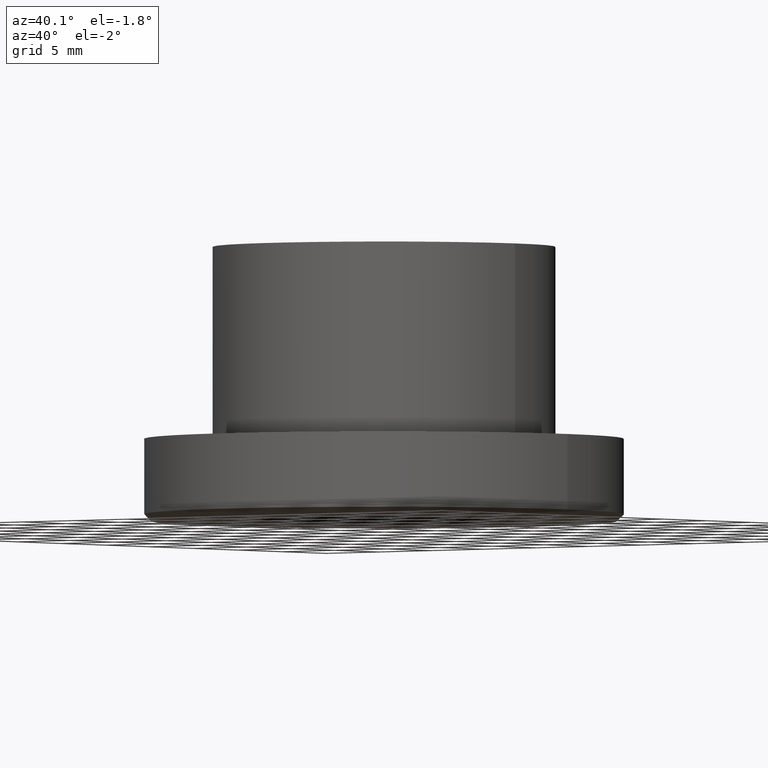
[diagram: clean part render]
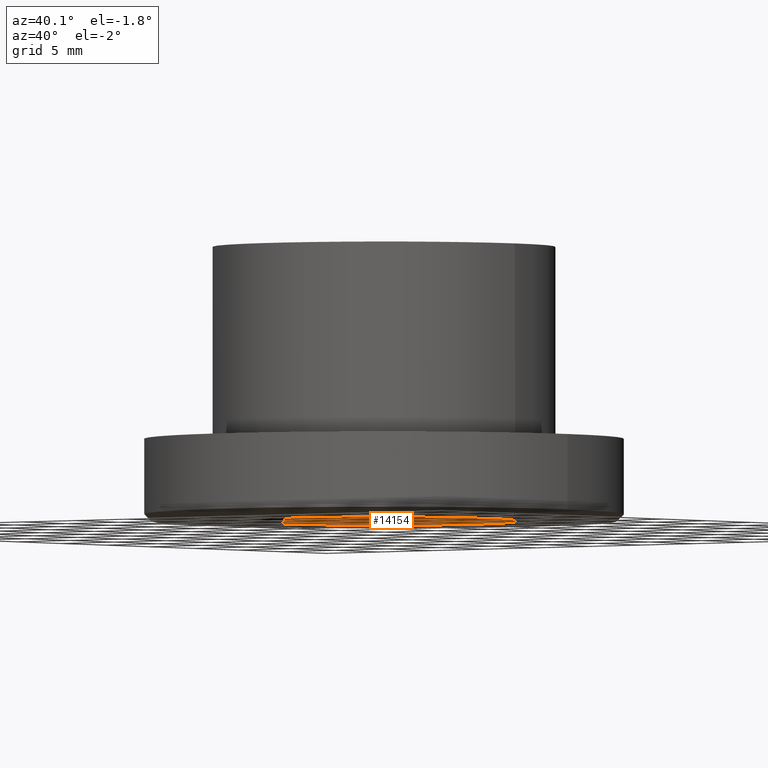
[diagram: same view with one face highlighted and labeled with its STEP entity id]
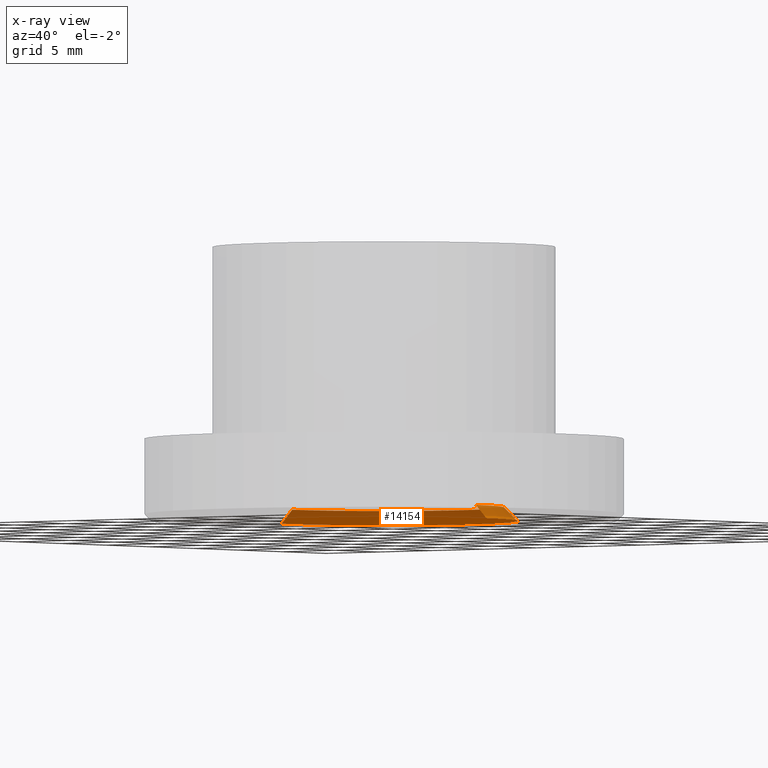
[diagram: x-ray of the same camera — body ghosted, the highlighted face saturated]
A machine part, auxiliary view. The second image highlights one B-rep face of the part: STEP entity #14154.
The next image is the same camera in x-ray: the body ghosted, the highlighted face saturated — about 48% of this face is hidden behind the body in this view.
In plain terms, the highlighted conical surface has half-angle 45 deg.
Its self-contained STEP definition (entity closure, byte-faithful):
#107 = CARTESIAN_POINT ( 'NONE',  ( 9.750000000000001776, 1.194030629168669667E-15, -10.00000000000000000 ) ) ;
#217 = VERTEX_POINT ( 'NONE', #8778 ) ;
#221 = VERTEX_POINT ( 'NONE', #2245 ) ;
#246 = EDGE_LOOP ( 'NONE', ( #1671, #4175, #12935, #3778 ) ) ;
#330 = FACE_OUTER_BOUND ( 'NONE', #246, .T. ) ;
#689 = EDGE_CURVE ( 'NONE', #217, #2035, #8036, .T. ) ;
#1183 = DIRECTION ( 'NONE',  ( -0.7071067811865463515, 0.000000000000000000, -0.7071067811865487940 ) ) ;
#1380 = VECTOR ( 'NONE', #1183, 1000.000000000000000 ) ;
#1421 = EDGE_CURVE ( 'NONE', #8099, #221, #10090, .T. ) ;
#1671 = ORIENTED_EDGE ( 'NONE', *, *, #689, .F. ) ;
#2035 = VERTEX_POINT ( 'NONE', #12724 ) ;
#2245 = CARTESIAN_POINT ( 'NONE',  ( -9.750000000000001776, 0.000000000000000000, -10.00000000000000000 ) ) ;
#2604 = AXIS2_PLACEMENT_3D ( 'NONE', #6101, #13554, #3773 ) ;
#2794 = DIRECTION ( 'NONE',  ( 1.000000000000000000, 0.000000000000000000, 0.000000000000000000 ) ) ;
#3773 = DIRECTION ( 'NONE',  ( 1.000000000000000000, 0.000000000000000000, 0.000000000000000000 ) ) ;
#3778 = ORIENTED_EDGE ( 'NONE', *, *, #13207, .F. ) ;
#4175 = ORIENTED_EDGE ( 'NONE', *, *, #9150, .F. ) ;
#4568 = DIRECTION ( 'NONE',  ( 0.7071067811865463515, 8.659560562354919300E-17, -0.7071067811865487940 ) ) ;
#5011 = CARTESIAN_POINT ( 'NONE',  ( 0.000000000000000000, 0.000000000000000000, -10.00000000000000000 ) ) ;
#5153 = VECTOR ( 'NONE', #4568, 1000.000000000000000 ) ;
#6101 = CARTESIAN_POINT ( 'NONE',  ( 0.000000000000000000, 0.000000000000000000, -8.999999999999989342 ) ) ;
#6256 = CARTESIAN_POINT ( 'NONE',  ( -8.749999999999994671, 1.071565949253933138E-15, -8.999999999999989342 ) ) ;
#6486 = CARTESIAN_POINT ( 'NONE',  ( 0.000000000000000000, 0.000000000000000000, -10.00000000000000000 ) ) ;
#6531 = CARTESIAN_POINT ( 'NONE',  ( -9.750000000000001776, 0.000000000000000000, -10.00000000000000000 ) ) ;
#7762 = CIRCLE ( 'NONE', #2604, 8.749999999999994671 ) ;
#8036 = LINE ( 'NONE', #107, #5153 ) ;
#8099 = VERTEX_POINT ( 'NONE', #6256 ) ;
#8397 = CIRCLE ( 'NONE', #12128, 9.750000000000001776 ) ;
#8778 = CARTESIAN_POINT ( 'NONE',  ( 8.749999999999994671, 0.000000000000000000, -8.999999999999989342 ) ) ;
#9150 = EDGE_CURVE ( 'NONE', #8099, #217, #7762, .T. ) ;
#9940 = AXIS2_PLACEMENT_3D ( 'NONE', #6486, #11731, #13995 ) ;
#10090 = LINE ( 'NONE', #6531, #1380 ) ;
#11125 = CONICAL_SURFACE ( 'NONE', #9940, 9.750000000000001776, 0.7853981633974466137 ) ;
#11731 = DIRECTION ( 'NONE',  ( -0.000000000000000000, -0.000000000000000000, -1.000000000000000000 ) ) ;
#12128 = AXIS2_PLACEMENT_3D ( 'NONE', #5011, #13652, #2794 ) ;
#12724 = CARTESIAN_POINT ( 'NONE',  ( 9.750000000000001776, 1.194030629168669667E-15, -10.00000000000000000 ) ) ;
#12935 = ORIENTED_EDGE ( 'NONE', *, *, #1421, .T. ) ;
#13207 = EDGE_CURVE ( 'NONE', #2035, #221, #8397, .T. ) ;
#13554 = DIRECTION ( 'NONE',  ( -0.000000000000000000, -0.000000000000000000, -1.000000000000000000 ) ) ;
#13652 = DIRECTION ( 'NONE',  ( -0.000000000000000000, -0.000000000000000000, 1.000000000000000000 ) ) ;
#13995 = DIRECTION ( 'NONE',  ( -1.000000000000000000, 0.000000000000000000, 0.000000000000000000 ) ) ;
#14154 = ADVANCED_FACE ( 'NONE', ( #330 ), #11125, .F. ) ;